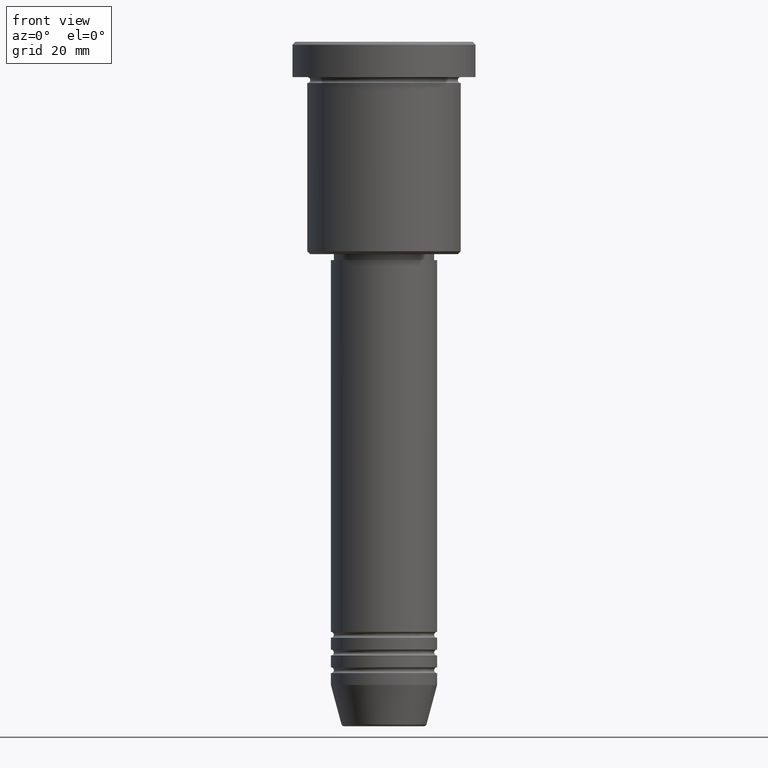
[diagram: clean part render]
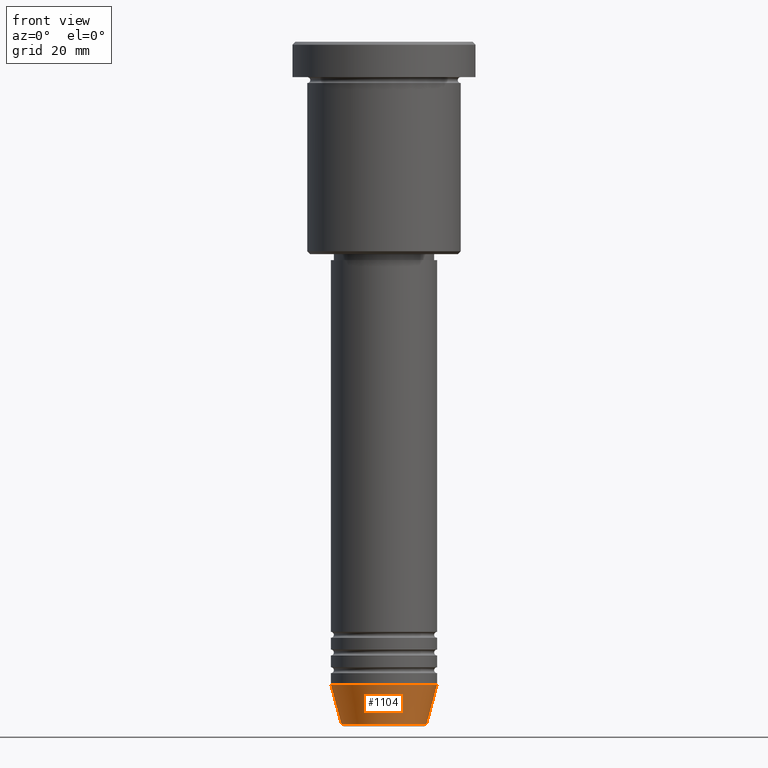
[diagram: same view with one face highlighted and labeled with its STEP entity id]
A machine part, front view. The second image highlights one B-rep face of the part: STEP entity #1104.
In plain terms, the highlighted conical surface has half-angle 15 deg.
Its self-contained STEP definition (entity closure, byte-faithful):
#7 = DIRECTION ( 'NONE',  ( 1.000000000000000000, 0.000000000000000000, 0.000000000000000000 ) ) ;
#88 = EDGE_CURVE ( 'NONE', #164, #973, #113, .T. ) ;
#97 = DIRECTION ( 'NONE',  ( -0.2588190451025213501, 3.169619151431772337E-17, 0.9659258262890680902 ) ) ;
#113 = LINE ( 'NONE', #273, #359 ) ;
#131 = AXIS2_PLACEMENT_3D ( 'NONE', #935, #220, #7 ) ;
#148 = VERTEX_POINT ( 'NONE', #459 ) ;
#164 = VERTEX_POINT ( 'NONE', #1178 ) ;
#165 = ORIENTED_EDGE ( 'NONE', *, *, #839, .F. ) ;
#178 = CARTESIAN_POINT ( 'NONE',  ( 0.000000000000000000, 0.000000000000000000, -115.6294095225512564 ) ) ;
#220 = DIRECTION ( 'NONE',  ( -0.000000000000000000, -0.000000000000000000, 1.000000000000000000 ) ) ;
#257 = ORIENTED_EDGE ( 'NONE', *, *, #543, .T. ) ;
#273 = CARTESIAN_POINT ( 'NONE',  ( -9.000000000000000000, 1.102182119232617714E-15, -109.0000000000000142 ) ) ;
#286 = EDGE_LOOP ( 'NONE', ( #540, #257, #494, #165 ) ) ;
#326 = DIRECTION ( 'NONE',  ( 1.000000000000000000, 0.000000000000000000, 0.000000000000000000 ) ) ;
#350 = VERTEX_POINT ( 'NONE', #857 ) ;
#359 = VECTOR ( 'NONE', #97, 1000.000000000000000 ) ;
#370 = DIRECTION ( 'NONE',  ( 0.2588190451025213501, 0.000000000000000000, 0.9659258262890680902 ) ) ;
#459 = CARTESIAN_POINT ( 'NONE',  ( 9.000000000000000000, 0.000000000000000000, -109.0000000000000142 ) ) ;
#465 = LINE ( 'NONE', #1183, #854 ) ;
#474 = DIRECTION ( 'NONE',  ( 1.000000000000000000, 0.000000000000000000, 0.000000000000000000 ) ) ;
#491 = FACE_OUTER_BOUND ( 'NONE', #286, .T. ) ;
#494 = ORIENTED_EDGE ( 'NONE', *, *, #662, .T. ) ;
#540 = ORIENTED_EDGE ( 'NONE', *, *, #88, .F. ) ;
#543 = EDGE_CURVE ( 'NONE', #164, #350, #819, .T. ) ;
#662 = EDGE_CURVE ( 'NONE', #350, #148, #465, .T. ) ;
#689 = CARTESIAN_POINT ( 'NONE',  ( 0.000000000000000000, 0.000000000000000000, -109.0000000000000142 ) ) ;
#731 = AXIS2_PLACEMENT_3D ( 'NONE', #689, #955, #326 ) ;
#819 = CIRCLE ( 'NONE', #986, 7.223655072137197486 ) ;
#839 = EDGE_CURVE ( 'NONE', #973, #148, #911, .T. ) ;
#854 = VECTOR ( 'NONE', #370, 1000.000000000000000 ) ;
#857 = CARTESIAN_POINT ( 'NONE',  ( 7.223655072137197486, 0.000000000000000000, -115.6294095225512564 ) ) ;
#911 = CIRCLE ( 'NONE', #731, 9.000000000000000000 ) ;
#935 = CARTESIAN_POINT ( 'NONE',  ( 0.000000000000000000, 0.000000000000000000, -109.0000000000000142 ) ) ;
#955 = DIRECTION ( 'NONE',  ( -0.000000000000000000, -0.000000000000000000, 1.000000000000000000 ) ) ;
#973 = VERTEX_POINT ( 'NONE', #1167 ) ;
#986 = AXIS2_PLACEMENT_3D ( 'NONE', #178, #1085, #474 ) ;
#1005 = CONICAL_SURFACE ( 'NONE', #131, 9.000000000000000000, 0.2617993877991500740 ) ;
#1085 = DIRECTION ( 'NONE',  ( -0.000000000000000000, -0.000000000000000000, 1.000000000000000000 ) ) ;
#1104 = ADVANCED_FACE ( 'NONE', ( #491 ), #1005, .T. ) ;
#1167 = CARTESIAN_POINT ( 'NONE',  ( -9.000000000000000000, 1.102182119232617714E-15, -109.0000000000000142 ) ) ;
#1178 = CARTESIAN_POINT ( 'NONE',  ( -7.223655072137198374, 9.934123627281771026E-16, -115.6294095225512564 ) ) ;
#1183 = CARTESIAN_POINT ( 'NONE',  ( 9.000000000000000000, 0.000000000000000000, -109.0000000000000142 ) ) ;